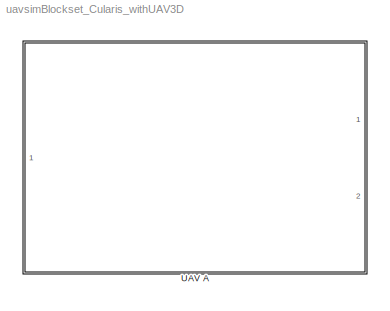
MODEL uavsimBlockset_Cularis_withUAV3D
KIND library
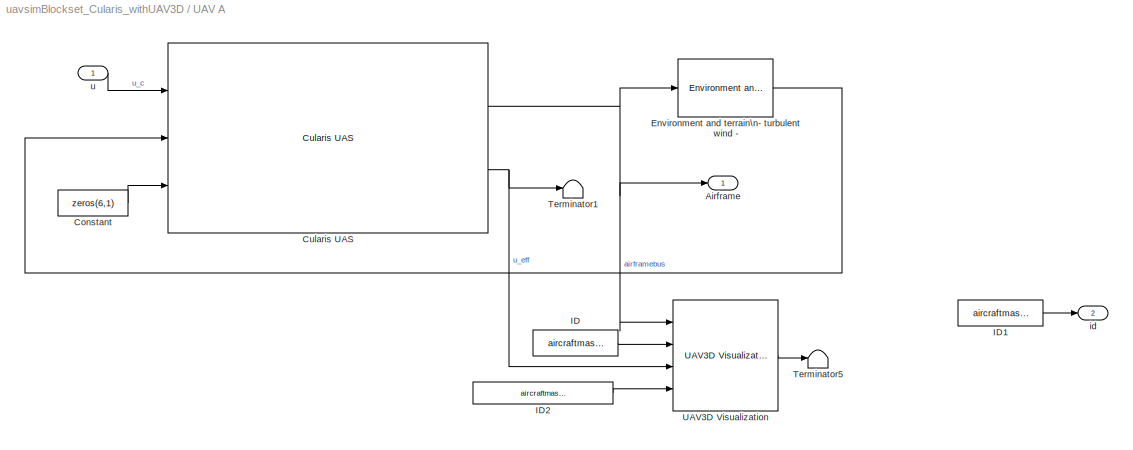
BLOCK [SubSystem] UAV A
  Ports = [1, 2]
  RequestExecContextInheritance = off
  SID = 4427
  ShowPortLabels = FromPortBlockName
  Variant = off
BLOCK [Outport] UAV A/Airframe
  IconDisplay = Port number
  OutDataTypeStr = Bus: Airframe
  SID = 4427:10963
BLOCK [Constant] UAV A/Constant
  SID = 4427:2440
  Value = zeros(6,1)
BLOCK [Reference] UAV A/Cularis UAS  REF=uavsimblockset/Cularis UAS  (lib defined in mdl_5d9185be9e12)
  Ports = [3, 2]
  SID = 4427:10816
  SourceBlock = uavsimblockset/Cularis UAS
  mask_cularis_originNED_ECEF_rrm = aircraftmask_originNED_ECEF_rrm
  mask_cularis_p0_ECEF_lla = fflib_degdegm2rrm(flat2lla(aircraftmask_p0_NED_m, rad2deg(aircraftmask_originNED_ECEF_rrm(1:2)), 0, aircraftmask_originNED_ECEF_rrm(3)))
  mask_cularis_phithetapsi0 = aircraftmask_phithetapsi0
  mask_cularis_pqr0 = aircraftmask_pqr0
  mask_cularis_uvw0 = aircraftmask_uvw0
  uavsim = uavsim
BLOCK [Reference] UAV A/Environment and terrain\n- turbulent wind -  REF=formationFlyingBlockset/Environment and terrain\n- turbulent wind -
  Ports = [1, 1]
  SID = 4427:10919
  SourceBlock = formationFlyingBlockset/Environment and terrain\n- turbulent wind -
  mask_ambientWind = uavsim.environment.ambientWind_NED_mps
  mask_turbulenceON = on
  mask_windON = on
  mask_wingspan = uavsim.cularis.b
BLOCK [Constant] UAV A/ID
  SID = 4427:655
  Value = aircraftmask_ID
BLOCK [Constant] UAV A/ID1
  SID = 4427:10979
  Value = aircraftmask_ID
BLOCK [Constant] UAV A/ID2
  SID = 4427:10987
  Value = aircraftmask_displayUAV3D
BLOCK [Terminator] UAV A/Terminator1
  SID = 4427:10978
BLOCK [Terminator] UAV A/Terminator5
  SID = 4427:5698
BLOCK [Reference] UAV A/UAV3D Visualization  REF=uavsimBlockset_UAV3DVisualization/UAV3D Visualization
  Ports = [4, 1]
  SID = 4427:9219
  SourceBlock = uavsimBlockset_UAV3DVisualization/UAV3D Visualization
  mask_visual = 2
BLOCK [Outport] UAV A/id
  IconDisplay = Port number
  Port = 2
  SID = 4427:10977
BLOCK [Inport] UAV A/u
  IconDisplay = Port number
  OutDataTypeStr = Bus: CMD
  SID = 4427:10841
LINE UAV A/Constant:1 -> UAV A/Cularis UAS:3
NET UAV A/Cularis UAS:1 -> UAV A/Airframe:1, UAV A/Environment and terrain\n- turbulent wind -:1, UAV A/UAV3D Visualization:1
NET UAV A/Cularis UAS:2 -> UAV A/Terminator1:1, UAV A/UAV3D Visualization:3
LINE UAV A/Environment and terrain\n- turbulent wind -:1 -> UAV A/Cularis UAS:2
LINE UAV A/ID1:1 -> UAV A/id:1
LINE UAV A/ID2:1 -> UAV A/UAV3D Visualization:4
LINE UAV A/ID:1 -> UAV A/UAV3D Visualization:2
LINE UAV A/UAV3D Visualization:1 -> UAV A/Terminator5:1
LINE UAV A/u:1 -> UAV A/Cularis UAS:1
note: NET lines group one-source signal fan-out (src -> all destinations, sorted); 1:1 wires keep LINE
